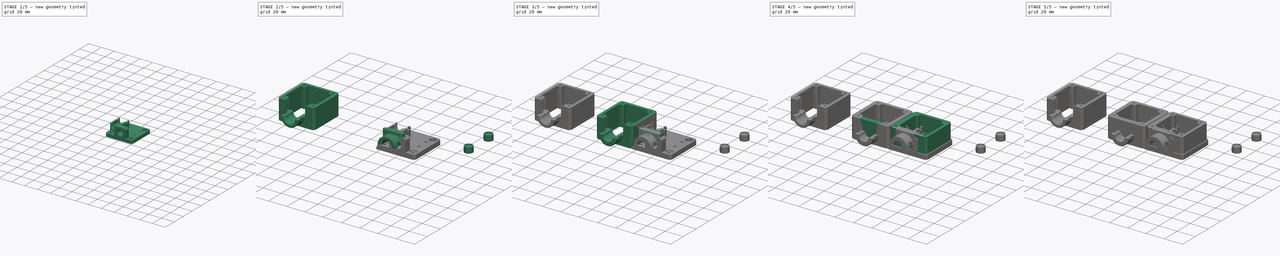
[diagram: build sequence overview — one tinted view per stage of 5, left to right]
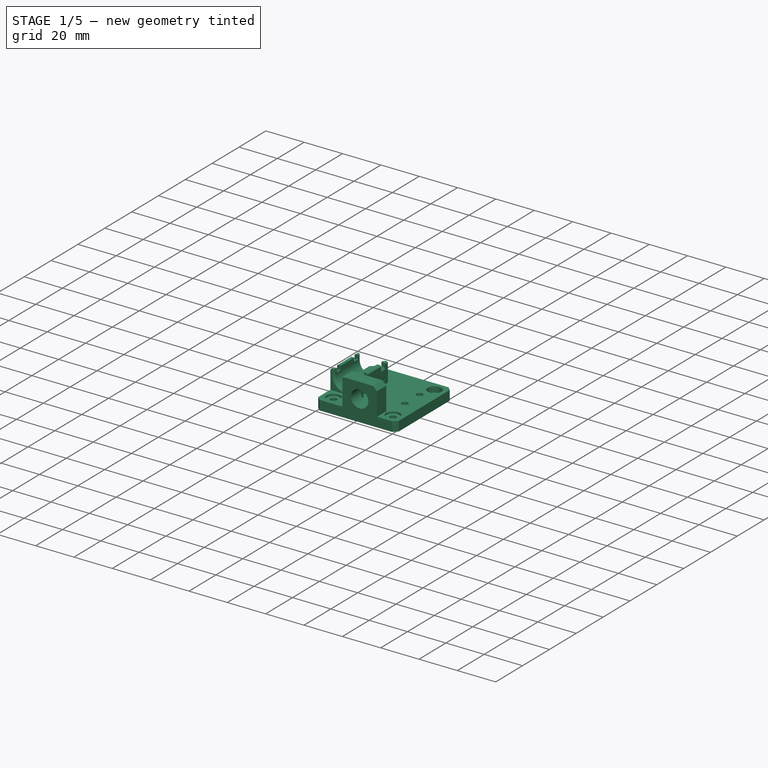
[diagram: stage 1 of 5 — iso view after this stage's code; geometry added in this stage tinted green]
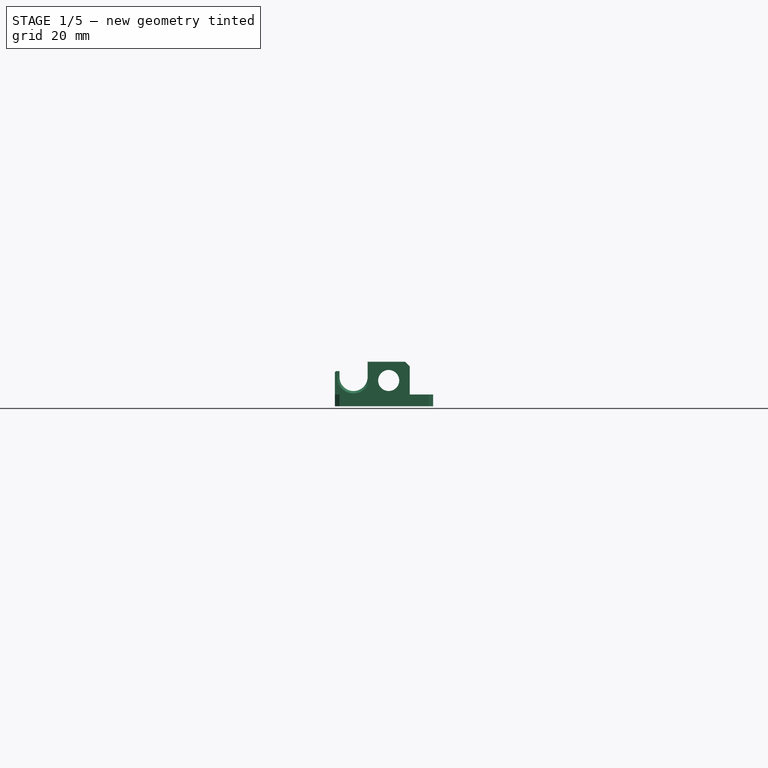
[diagram: stage 1 of 5 — front view after this stage's code; geometry added in this stage tinted green]
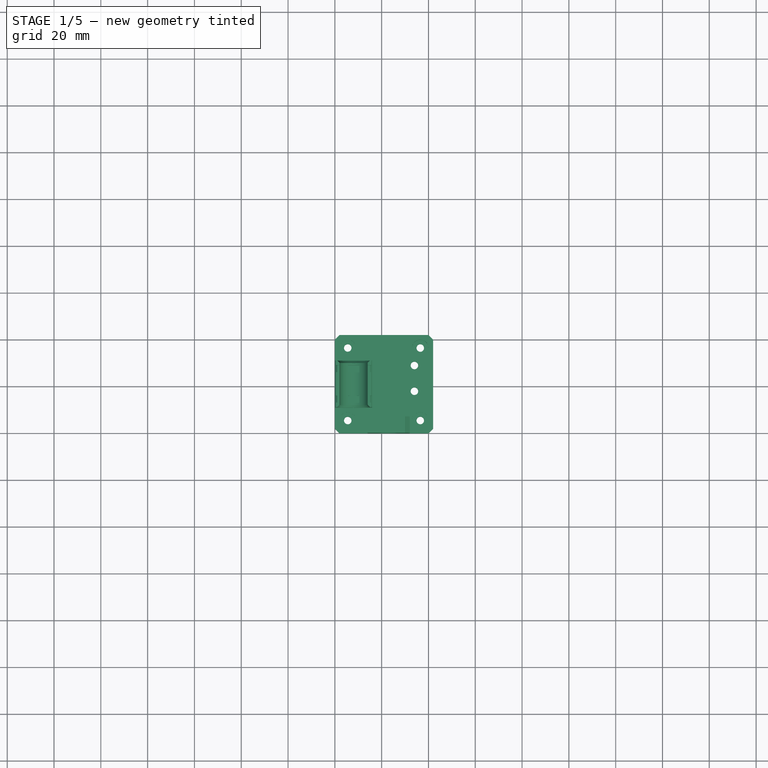
[diagram: stage 1 of 5 — top view after this stage's code; geometry added in this stage tinted green]
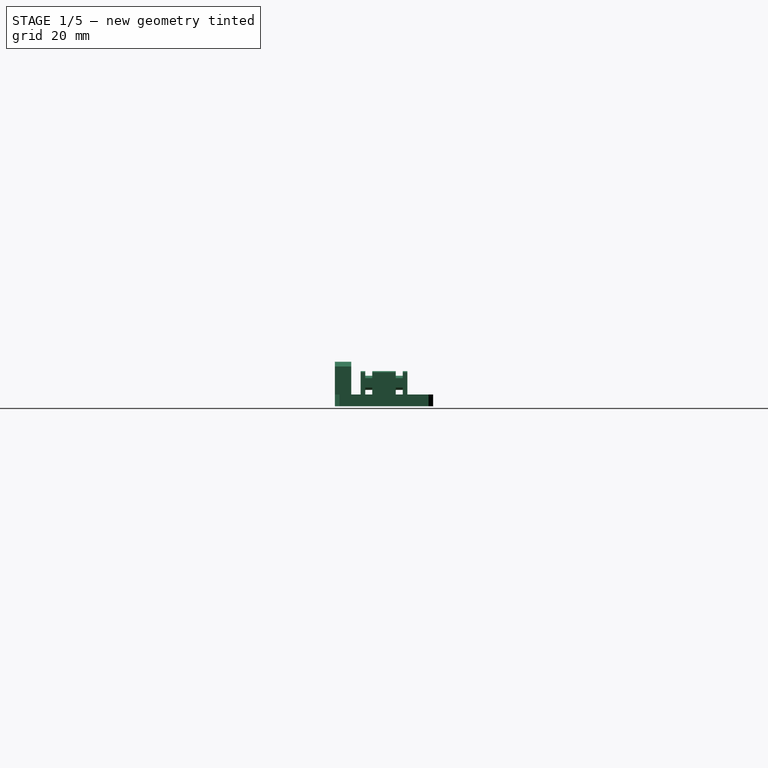
[diagram: stage 1 of 5 — right view after this stage's code; geometry added in this stage tinted green]
FCSTD DOCUMENT  (FreeCAD 0.18R14555 (Git shallow))
Label: extruder-wirebox-top-fix
License: All rights reserved
LicenseURL: http://en.wikipedia.org/wiki/All_rights_reserved
objects: Part::Box×35, Part::Cylinder×32, Part::Cut×32, Part::Feature×25, Part::MultiFuse×23, Part::Chamfer×9, Part::Fillet×4, Part::MultiCommon×3, Sketcher::SketchObject×1, PartDesign::Pad×1, PartDesign::Body×1
note: 167 computed .brp shape members not serialized (recipe doc carries the construction recipe); baked Part::Feature solids carry a one-line shape summary decoded from their .brp

FEATURE [Part::Feature] Cut004003004003003004001  label="Cut004003004003003005"
  Placement = pos=(74,0,0) rot=(0,0,1;0rad)
  shape: bbox 42 x 42 x 5 mm, 22 faces (baked)
FEATURE [Part::Cylinder] Cylinder013
  Angle = 360
  AttacherType = Attacher::AttachEngine3D
  Height = 5
  Placement = pos=(69.5,4.5,15) rot=(0,0,1;0rad)
  Radius = 3.5
FEATURE [Part::Cut] Cut004003004003003004002
  Base = -> Cut004003004003003004001
  Tool = -> Cylinder013
FEATURE [Part::Cylinder] Cylinder014
  Angle = 360
  AttacherType = Attacher::AttachEngine3D
  Height = 5
  Placement = pos=(69.5,35.5,15) rot=(0,0,1;0rad)
  Radius = 3.5
FEATURE [Part::Cut] Cut004003004003003004003
  Base = -> Cut004003004003003004002
  Placement = pos=(-32.5,1,-15) rot=(0,0,1;0rad)
  Tool = -> Cylinder014
FEATURE [Part::Feature] Cut004003004003003004004004003001  label="Cut004003004003003004004004004"
  shape: bbox 40 x 50 x 22 mm, 56 faces (baked)
FEATURE [Part::Feature] Cut004003004003003004003001  label="Cut004003004003003004004004005"
  Placement = pos=(75.5,41,-15) rot=(0,0,1;3.14159rad)
  shape: bbox 42 x 42 x 5 mm, 20 faces (baked)
FEATURE [Part::MultiFuse] Fusion004002002004005005004
  Placement = pos=(-0.5,0,0) rot=(0,0,1;0rad)
  Shapes = -> [Cut004003004003003004003,Cut004003004003003004003001]
FEATURE [Part::Box] Box032  label="Cube032"
  AttacherType = Attacher::AttachEngine3D
  Height = 15
  Length = 16
  Placement = pos=(0,10.5,0) rot=(0,0,1;0rad)
  Width = 20
FEATURE [Part::Cylinder] Cylinder030
  Angle = 360
  AttacherType = Attacher::AttachEngine3D
  Height = 32
  Placement = pos=(8,3e-15,12.5) rot=(-1,0,0;1.5708rad)
  Radius = 6
FEATURE [Part::Box] Box033  label="Cube033"
  AttacherType = Attacher::AttachEngine3D
  Height = 15
  Length = 12
  Placement = pos=(2,10.5,12.5) rot=(0,0,1;0rad)
  Width = 20
FEATURE [Part::Cut] Cut004003004003003004004004003002
  Base = -> Box032
  Tool = -> Box033
FEATURE [Part::Cut] Cut004003004003003004004004003003
  Base = -> Cut004003004003003004004004003002
  Tool = -> Cylinder030
FEATURE [Part::Box] Box034  label="Cube034"
  AttacherType = Attacher::AttachEngine3D
  Height = 2
  Length = 16
  Placement = pos=(0,12.5,5) rot=(0,0,1;0rad)
  Width = 3
FEATURE [Part::Box] Box035  label="Cube035"
  AttacherType = Attacher::AttachEngine3D
  Height = 2
  Length = 16
  Placement = pos=(0,25.5,5) rot=(0,0,1;0rad)
  Width = 3
FEATURE [Part::Box] Box036  label="Cube036"
  AttacherType = Attacher::AttachEngine3D
  Height = 2
  Length = 16
  Placement = pos=(0,25.5,13) rot=(0,0,1;0rad)
  Width = 3
FEATURE [Part::Box] Box037  label="Cube037"
  AttacherType = Attacher::AttachEngine3D
  Height = 2
  Length = 16
  Placement = pos=(0,12.5,13) rot=(0,0,1;0rad)
  Width = 3
FEATURE [Part::MultiFuse] Fusion004002002004005005005
  Shapes = -> [Box037,Box036,Box034,Box035]
FEATURE [Part::Cut] Cut004003004003003004004004003004
  Base = -> Cut004003004003003004004004003003
  Tool = -> Fusion004002002004005005005
FEATURE [Part::Chamfer] Chamfer006
  Base = -> Cut004003004003003004004004003004
  Edges = 14 edges r=1: [Edge3,Edge7,Edge16,Edge20,Edge41,Edge42,Edge43,Edge49,Edge50,Edge51,Edge94,Edge98,Edge100,Edge101]
  Placement = pos=(0,0.5,0) rot=(0,0,1;0rad)
FEATURE [Part::Chamfer] Chamfer007
  Base = -> Chamfer006
  Edges = 6 edges r=0.5: [Edge4,Edge9,Edge12,Edge110,Edge120,Edge122]
FEATURE [Part::MultiFuse] Fusion004002002004005005006
  Shapes = -> [Fusion004002002004005005004,Chamfer007]
FEATURE [Part::Feature] Fusion004002002004005005007001  label="Fusion004002002004005005008"
  Placement = pos=(31,26,0) rot=(0,0,1;0rad)
  shape: bbox 6 x 6 x 10 mm, 9 faces (baked)
FEATURE [Part::Feature] Fusion004002002004005005007002  label="Fusion004002002004005005009"
  Placement = pos=(31,15,0) rot=(0,0,1;0rad)
  shape: bbox 6 x 6 x 10 mm, 9 faces (baked)
FEATURE [Part::MultiFuse] Fusion004002002004005005007003
  Shapes = -> [Fusion004002002004005005007002,Fusion004002002004005005007001]
FEATURE [Part::Cut] Cut004003004003003004004004003005
  Base = -> Fusion004002002004005005006
  Tool = -> Fusion004002002004005005007003
FEATURE [Part::Cylinder] Cylinder032
  Angle = 360
  AttacherType = Attacher::AttachEngine3D
  Height = 7
  Placement = pos=(23,7,11) rot=(1,0,0;1.5708rad)
  Radius = 4.5
FEATURE [Part::Box] Box039  label="Cube039"
  AttacherType = Attacher::AttachEngine3D
  Height = 14
  Length = 18
  Placement = pos=(14,0,5) rot=(0,0,1;0rad)
  Width = 7
FEATURE [Part::Cylinder] Cylinder033
  Angle = 360
  AttacherType = Attacher::AttachEngine3D
  Height = 2
  Placement = pos=(36.5,36.5,2) rot=(0,0,1;0rad)
  Radius = 3.5
FEATURE [Part::Cut] Cut004003004003003004004004003007
  Base = -> Cut004003004003003004004004003005
  Tool = -> Cylinder033
FEATURE [Part::Cut] Cut004003004003003004004004003008
  Base = -> Box039
  Tool = -> Cylinder032
FEATURE [Part::Chamfer] Chamfer008
  Base = -> Cut004003004003003004004004003008
  Edges = 1 edges r=2: [Edge10]
FEATURE [Part::MultiFuse] Fusion004002002004005005007004
  Shapes = -> [Cut004003004003003004004004003007,Chamfer008]
FEATURE [Part::Feature] Fusion004002002004005005007004001  label="Fusion004002002004005005007005"
  shape: bbox 42 x 42 x 19 mm, 92 faces (baked)
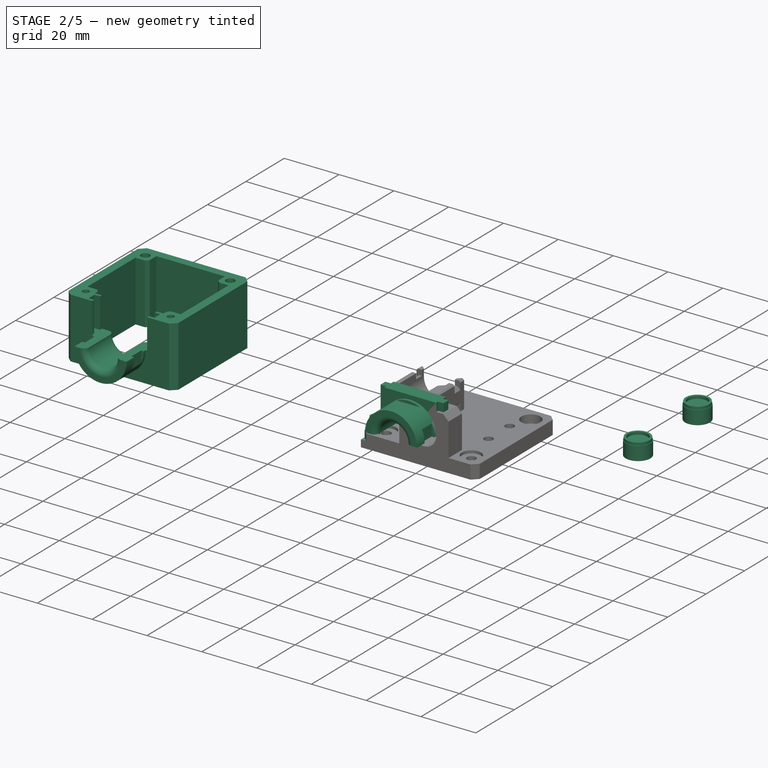
[diagram: stage 2 of 5 — iso view after this stage's code; geometry added in this stage tinted green]
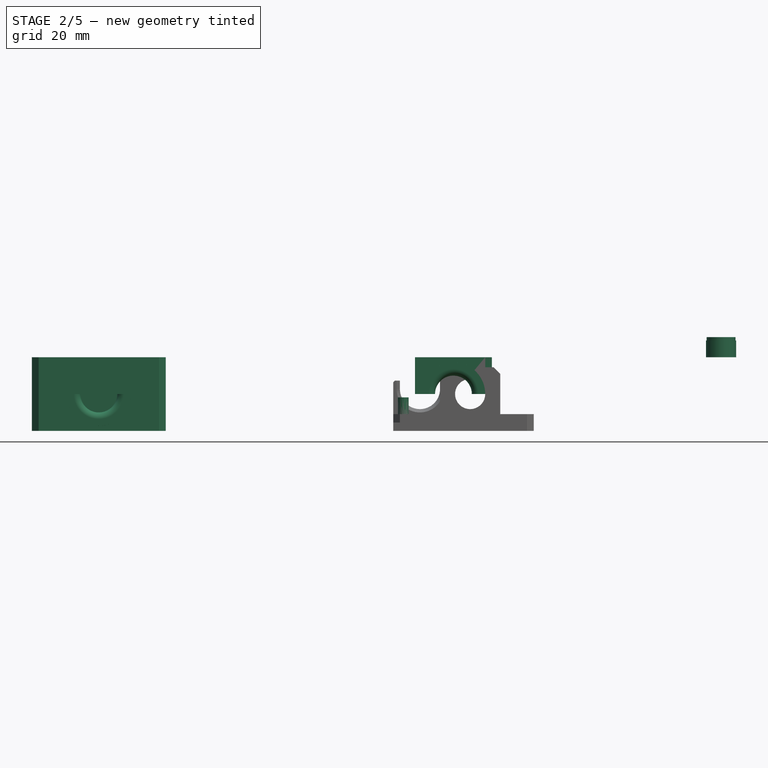
[diagram: stage 2 of 5 — front view after this stage's code; geometry added in this stage tinted green]
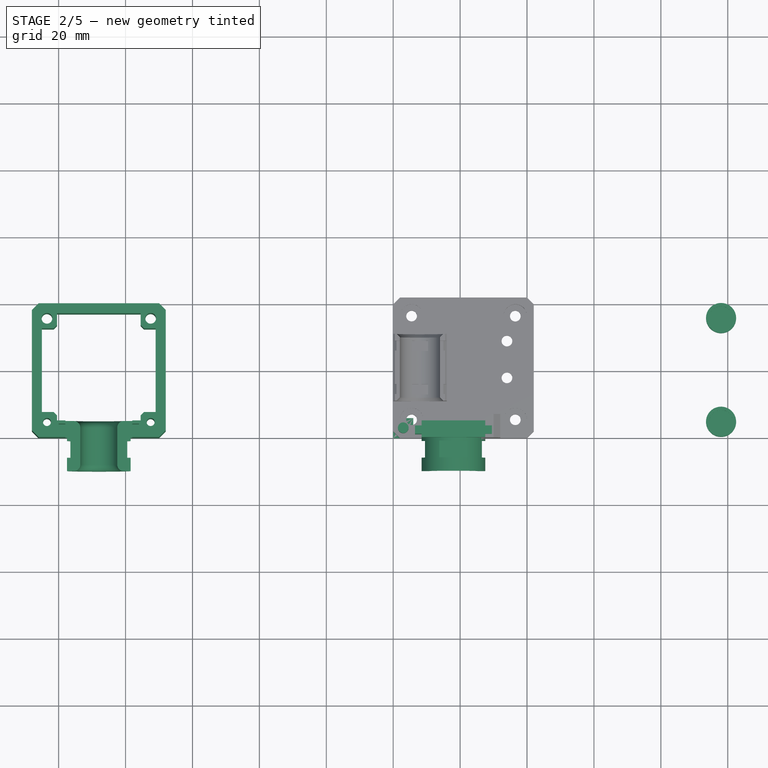
[diagram: stage 2 of 5 — top view after this stage's code; geometry added in this stage tinted green]
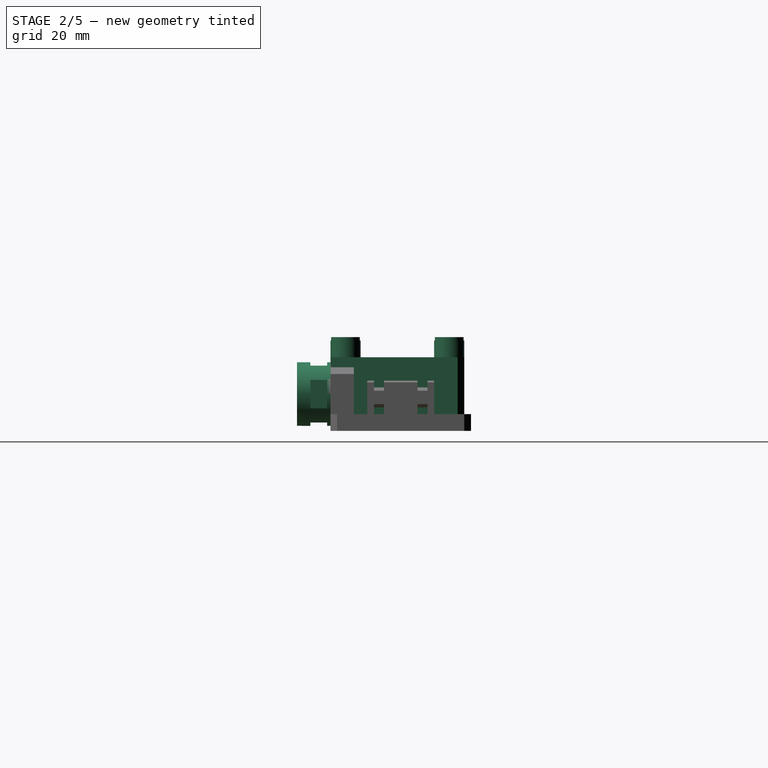
[diagram: stage 2 of 5 — right view after this stage's code; geometry added in this stage tinted green]
FEATURE [Part::Feature] Fusion004002002004005005001  label="Fusion004002002004005006"
  shape: bbox 40 x 50 x 22 mm, 51 faces (baked)
FEATURE [Part::Feature] Fusion004002002004005004001  label="Fusion004002002004005007"
  shape: bbox 24 x 16.5 x 11 mm, 28 faces (baked)
FEATURE [Part::Fillet] Fillet
  Base = -> Fusion004002002004005004001
  Edges = 1 edges r=2: [Edge76]
FEATURE [Part::Box] Box029  label="Cube029"
  AttacherType = Attacher::AttachEngine3D
  Height = 1
  Length = 10
  Placement = pos=(13,-6,19.5) rot=(0,0,1;0rad)
  Width = 5
FEATURE [Part::Cylinder] Cylinder019
  Angle = 360
  AttacherType = Attacher::AttachEngine3D
  Height = 5
  Placement = pos=(98,4.5,22) rot=(0,0,1;0rad)
  Radius = 4.5
FEATURE [Part::Cylinder] Cylinder020
  Angle = 360
  AttacherType = Attacher::AttachEngine3D
  Height = 5
  Placement = pos=(98,35.5,22) rot=(0,0,1;0rad)
  Radius = 4.5
FEATURE [Part::Cylinder] Cylinder021
  Angle = 360
  AttacherType = Attacher::AttachEngine3D
  Height = 4
  Placement = pos=(98,35.5,24) rot=(0,0,1;0rad)
  Radius = 3.5
FEATURE [Part::Cylinder] Cylinder022
  Angle = 360
  AttacherType = Attacher::AttachEngine3D
  Height = 4
  Placement = pos=(98,4.5,24) rot=(0,0,1;0rad)
  Radius = 3.5
FEATURE [Part::MultiFuse] Fusion004002002004005005002
  Shapes = -> [Cylinder020,Cylinder019]
FEATURE [Part::Cylinder] Cylinder023
  Angle = 360
  AttacherType = Attacher::AttachEngine3D
  Height = 6
  Placement = pos=(98,35.5,22) rot=(0,0,1;0rad)
  Radius = 4.3
FEATURE [Part::Cylinder] Cylinder024
  Angle = 360
  AttacherType = Attacher::AttachEngine3D
  Height = 6
  Placement = pos=(98,4.5,22) rot=(0,0,1;0rad)
  Radius = 4.3
FEATURE [Part::Cylinder] Cylinder025
  Angle = 360
  AttacherType = Attacher::AttachEngine3D
  Height = 5
  Placement = pos=(98,4.5,22) rot=(0,0,1;0rad)
  Radius = 1.6
FEATURE [Part::Cylinder] Cylinder026
  Angle = 360
  AttacherType = Attacher::AttachEngine3D
  Height = 5
  Placement = pos=(98,35.5,22) rot=(0,0,1;0rad)
  Radius = 1.6
FEATURE [Part::Cut] Cut004003004003003004004006
  Base = -> Cylinder024
  Tool = -> Cylinder022
FEATURE [Part::Cut] Cut004003004003003004004007
  Base = -> Cylinder023
  Tool = -> Cylinder021
FEATURE [Part::Cut] Cut004003004003003004004008
  Base = -> Cut004003004003003004004007
  Tool = -> Cylinder026
FEATURE [Part::Cut] Cut004003004003003004004009
  Base = -> Cut004003004003003004004006
  Tool = -> Cylinder025
FEATURE [Part::Box] Box031  label="Cube031"
  AttacherType = Attacher::AttachEngine3D
  Height = 14
  Length = 25
  Placement = pos=(6,5,9) rot=(0,0,1;0rad)
  Width = 10
FEATURE [Part::Cut] Cut004003004003003004004010
  Base = -> Fillet
  Tool = -> Box031
FEATURE [Part::Fillet] Fillet003
  Base = -> Cut004003004003003004004010
  Edges = 1 edges r=2: [Edge41]
FEATURE [Part::Cut] Cut004003004003003004004011
  Base = -> Fillet003
  Tool = -> Box029
FEATURE [Part::Feature] Cut004003004003003004004004001  label="Cut004003004003003004004012"
  Placement = pos=(-68,0,0) rot=(0,0,1;0rad)
  shape: bbox 40 x 50 x 22 mm, 56 faces (baked)
FEATURE [Part::Cylinder] Cylinder027
  Angle = 360
  AttacherType = Attacher::AttachEngine3D
  Height = 22
  Placement = pos=(-72.5,4.5,0) rot=(0,0,1;0rad)
  Radius = 2
FEATURE [Part::Cylinder] Cylinder028
  Angle = 360
  AttacherType = Attacher::AttachEngine3D
  Height = 22
  Placement = pos=(-72.5,4.5,0) rot=(0,0,1;0rad)
  Radius = 1.2
FEATURE [Part::Cylinder] Cylinder029
  Angle = 360
  AttacherType = Attacher::AttachEngine3D
  Height = 22
  Placement = pos=(-103.5,35.5,0) rot=(0,0,1;0rad)
  Radius = 1.6
FEATURE [Part::Cut] Cut004003004003003004004004002
  Base = -> Cut004003004003003004004004001
  Tool = -> Cylinder029
FEATURE [Part::MultiFuse] Fusion004002002004005005003
  Shapes = -> [Cut004003004003003004004004002,Cylinder027]
FEATURE [Part::Cut] Cut004003004003003004004004003
  Base = -> Fusion004002002004005005003
  Tool = -> Cylinder028
FEATURE [Part::Box] Box038  label="Cube038"
  AttacherType = Attacher::AttachEngine3D
  Height = 2.5
  Length = 6
  Width = 6
FEATURE [Part::Cylinder] Cylinder031
  Angle = 360
  AttacherType = Attacher::AttachEngine3D
  Height = 10
  Placement = pos=(3,3,0) rot=(0,0,1;0rad)
  Radius = 1.6
FEATURE [Part::MultiFuse] Fusion004002002004005005007
  Shapes = -> [Cylinder031,Box038]
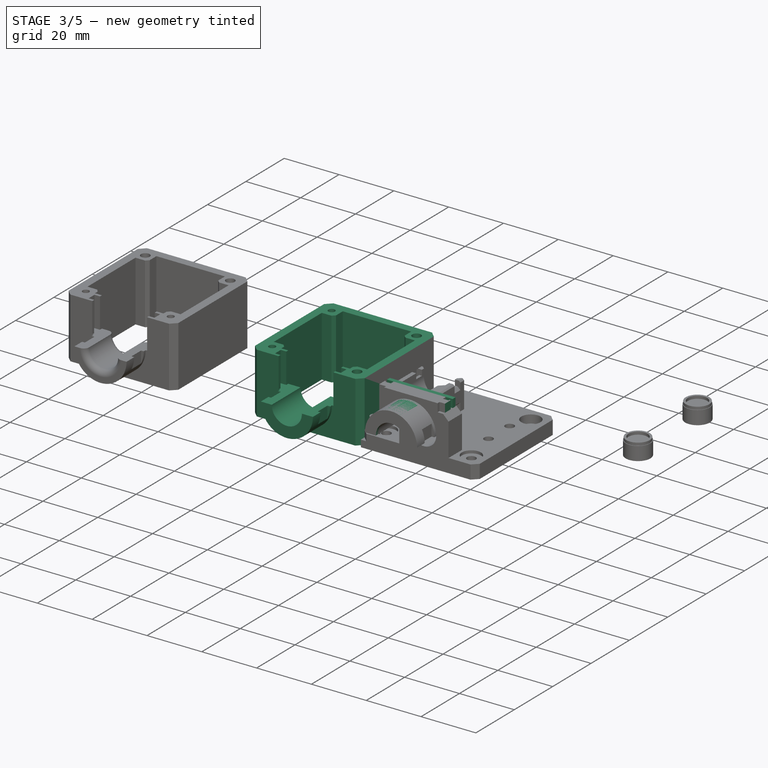
[diagram: stage 3 of 5 — iso view after this stage's code; geometry added in this stage tinted green]
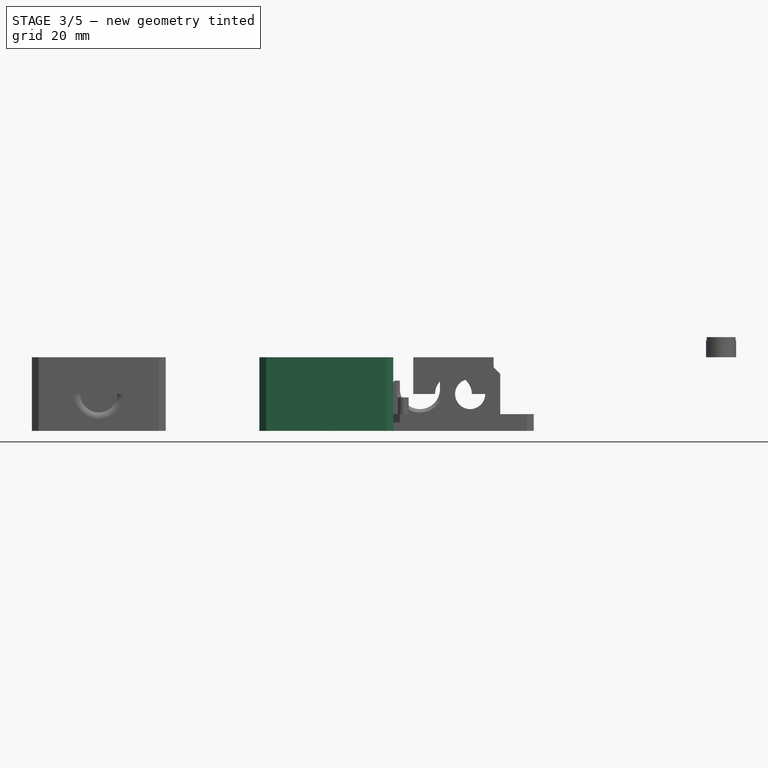
[diagram: stage 3 of 5 — front view after this stage's code; geometry added in this stage tinted green]
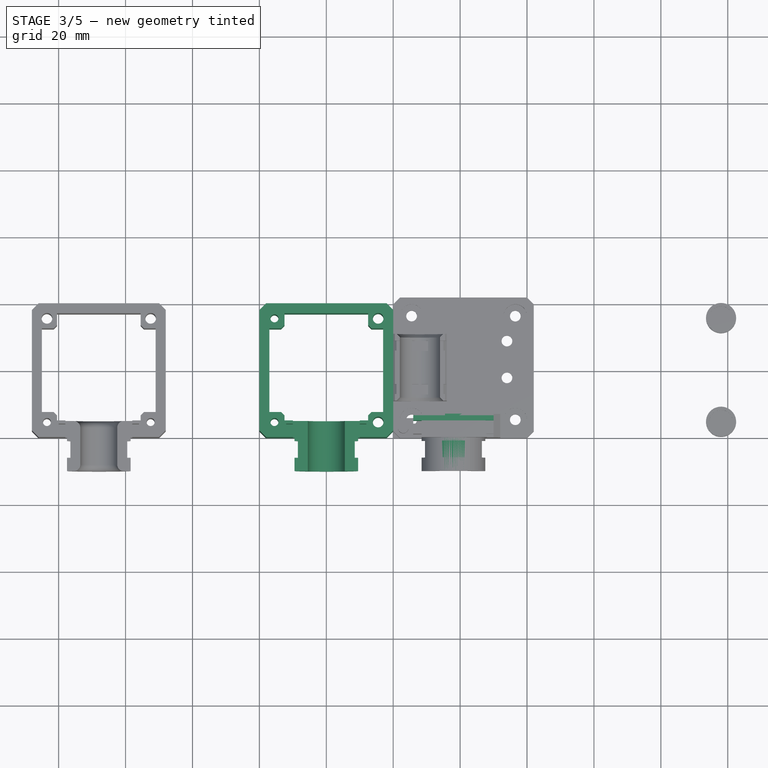
[diagram: stage 3 of 5 — top view after this stage's code; geometry added in this stage tinted green]
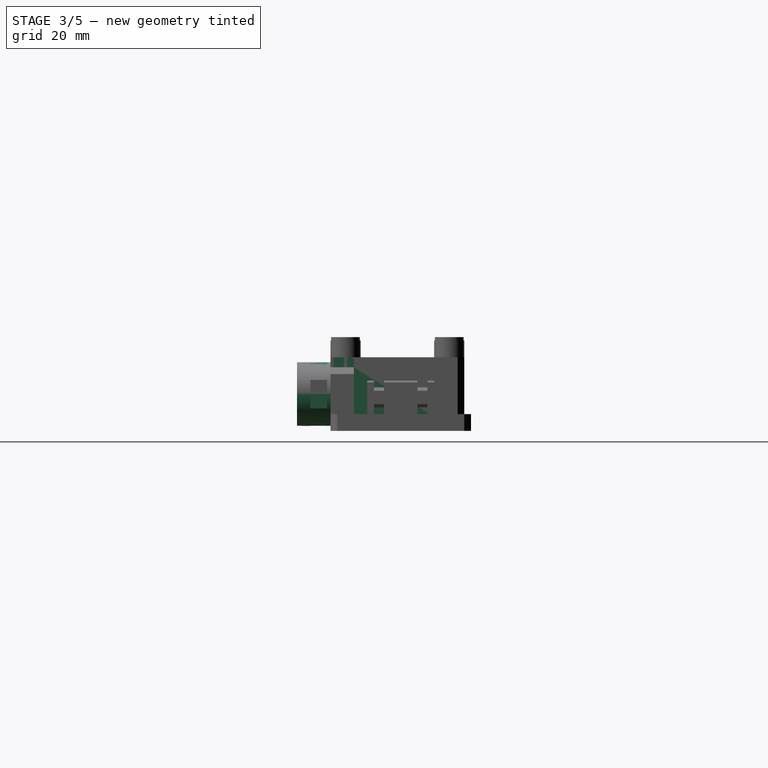
[diagram: stage 3 of 5 — right view after this stage's code; geometry added in this stage tinted green]
FEATURE [Part::Box] Box018  label="Cube018"
  AttacherType = Attacher::AttachEngine3D
  Height = 11
  Length = 0.5
  Placement = pos=(27.5,0,11) rot=(0,0,1;0rad)
  Width = 1
FEATURE [Part::Box] Box019  label="Cube019"
  AttacherType = Attacher::AttachEngine3D
  Height = 11
  Length = 0.5
  Placement = pos=(6,1,11) rot=(0,0,1;0rad)
  Width = 3
FEATURE [Part::Box] Box020  label="Cube020"
  AttacherType = Attacher::AttachEngine3D
  Height = 11
  Length = 0.5
  Placement = pos=(29.5,1,11) rot=(0,0,1;0rad)
  Width = 3
FEATURE [Part::Feature] Cut004003004003001  label="Cut004003004004"
  shape: bbox 24 x 16.5 x 11 mm, 28 faces (baked)
FEATURE [Part::Feature] Cut004003004002001  label="Cut004003004005"
  shape: bbox 40 x 50 x 22 mm, 51 faces (baked)
FEATURE [Part::Cylinder] Cylinder008
  Angle = 360
  AttacherType = Attacher::AttachEngine3D
  Height = 22
  Placement = pos=(-4.5,4.5,0) rot=(0,0,1;0rad)
  Radius = 1.6
FEATURE [Part::Cylinder] Cylinder009
  Angle = 360
  AttacherType = Attacher::AttachEngine3D
  Height = 22
  Placement = pos=(-4.5,35.5,0) rot=(0,0,1;0rad)
  Radius = 1.6
FEATURE [Part::Cylinder] Cylinder010
  Angle = 360
  AttacherType = Attacher::AttachEngine3D
  Height = 22
  Placement = pos=(-35.5,4.5,0) rot=(0,0,1;0rad)
  Radius = 2
FEATURE [Part::Cylinder] Cylinder011
  Angle = 360
  AttacherType = Attacher::AttachEngine3D
  Height = 22
  Placement = pos=(-35.5,35.5,0) rot=(0,0,1;0rad)
  Radius = 2
FEATURE [Part::MultiFuse] Fusion004002002004004  label="widern"
  Shapes = -> [Cylinder008,Cylinder009]
FEATURE [Part::Feature] Fusion004002002004005001  label="small-screw001"
  shape: bbox 2.4 x 33.4 x 22 mm, 6 faces, 2 solids (baked)
FEATURE [Part::MultiFuse] Fusion004002002004005002
  Shapes = -> [Cut004003004002001,Cylinder010,Cylinder011]
FEATURE [Part::Cut] Cut004003004003002
  Base = -> Fusion004002002004005002
  Tool = -> Fusion004002002004005001
FEATURE [Part::Cut] Cut004003004003003
  Base = -> Cut004003004003002
  Tool = -> Fusion004002002004004
FEATURE [Part::Feature] Cut004003004003003001  label="Cut004003004003004"
  shape: bbox 40 x 50 x 22 mm, 51 faces (baked)
FEATURE [Part::Cylinder] Cylinder012
  Angle = 360
  AttacherType = Attacher::AttachEngine3D
  Height = 10
  Placement = pos=(18,2e-15,11) rot=(-1,0,0;1.5708rad)
  Radius = 7.5
FEATURE [Part::Cut] Cut004003004003003002
  Base = -> Cut004003004003001
  Tool = -> Cylinder012
FEATURE [Part::Box] Box026  label="Cube026"
  AttacherType = Attacher::AttachEngine3D
  Height = 5
  Length = 5
  Placement = pos=(15.5,4,16.5) rot=(0,0,1;0rad)
  Width = 3
FEATURE [Part::Cylinder] Cylinder017
  Angle = 360
  AttacherType = Attacher::AttachEngine3D
  Height = 15
  Placement = pos=(-20,5,11) rot=(1,0,0;1.5708rad)
  Radius = 7.5
FEATURE [Part::Cylinder] Cylinder018
  Angle = 360
  AttacherType = Attacher::AttachEngine3D
  Height = 15
  Placement = pos=(-20,5,11) rot=(1,0,0;1.5708rad)
  Radius = 5.5
FEATURE [Part::Cut] Cut004003004003003004004
  Base = -> Cylinder017
  Tool = -> Cylinder018
FEATURE [Part::Feature] Cut004003004003003004004001  label="Cut004003004003003004005"
  shape: bbox 15 x 15 x 15 mm, 4 faces (baked)
FEATURE [Part::Box] Box027  label="Cube027"
  AttacherType = Attacher::AttachEngine3D
  Height = 10
  Length = 19
  Placement = pos=(-29.5,-10,11) rot=(0,0,1;0rad)
  Width = 18
FEATURE [Part::Box] Box028  label="Cube028"
  AttacherType = Attacher::AttachEngine3D
  Height = 10
  Length = 19
  Placement = pos=(-29.5,-10,11) rot=(0,0,1;0rad)
  Width = 18
FEATURE [Part::Cut] Cut004003004003003004004002
  Base = -> Cut004003004003003004004
  Tool = -> Box028
FEATURE [Part::MultiCommon] Common003
  Placement = pos=(38,0,0) rot=(0,0,1;0rad)
  Shapes = -> [Box027,Cut004003004003003004004001]
FEATURE [Part::Feature] Common003001  label="Common004"
  Placement = pos=(38,1.5,0) rot=(0,0,1;0rad)
  shape: bbox 15 x 15 x 7.5 mm, 6 faces (baked)
FEATURE [Part::MultiFuse] Fusion004002002004005004
  Shapes = -> [Common003001,Common003,Cut004003004003003002]
FEATURE [Part::MultiFuse] Fusion004002002004005005
  Shapes = -> [Cut004003004003003004004002,Cut004003004003003001]
FEATURE [Part::Fillet] Fillet001
  Base = -> Fusion004002002004005005001
  Edges = 1 edges r=2: [Edge148]
FEATURE [Part::Fillet] Fillet002
  Base = -> Fillet001
  Edges = 1 edges r=2: [Edge30]
FEATURE [Part::Box] Box030  label="Cube030"
  AttacherType = Attacher::AttachEngine3D
  Height = 1
  Length = 10
  Placement = pos=(-25,-6,1.5) rot=(0,0,1;0rad)
  Width = 5
FEATURE [Part::Cut] Cut004003004003003004004004
  Base = -> Fillet002
  Tool = -> Box030
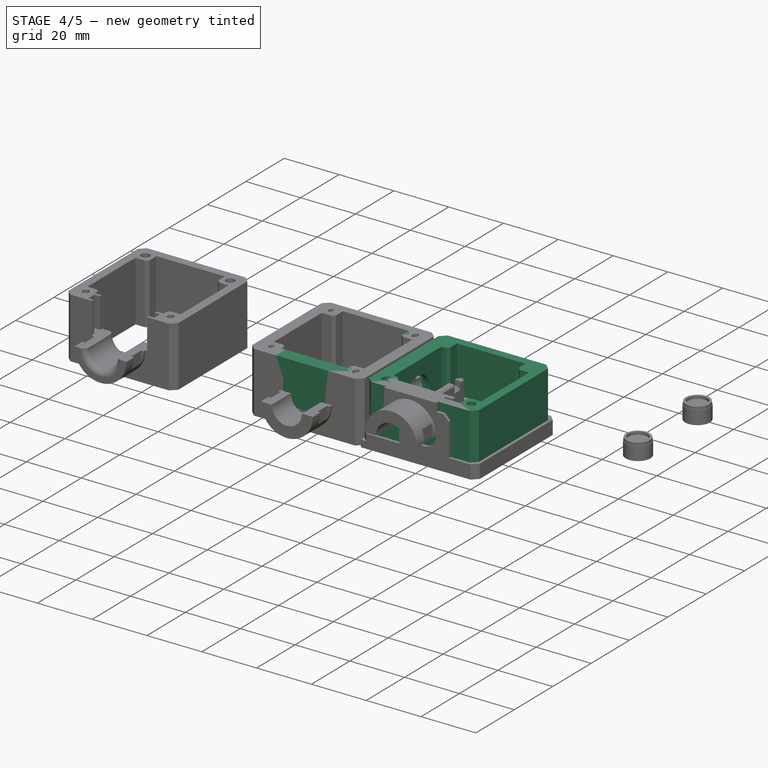
[diagram: stage 4 of 5 — iso view after this stage's code; geometry added in this stage tinted green]
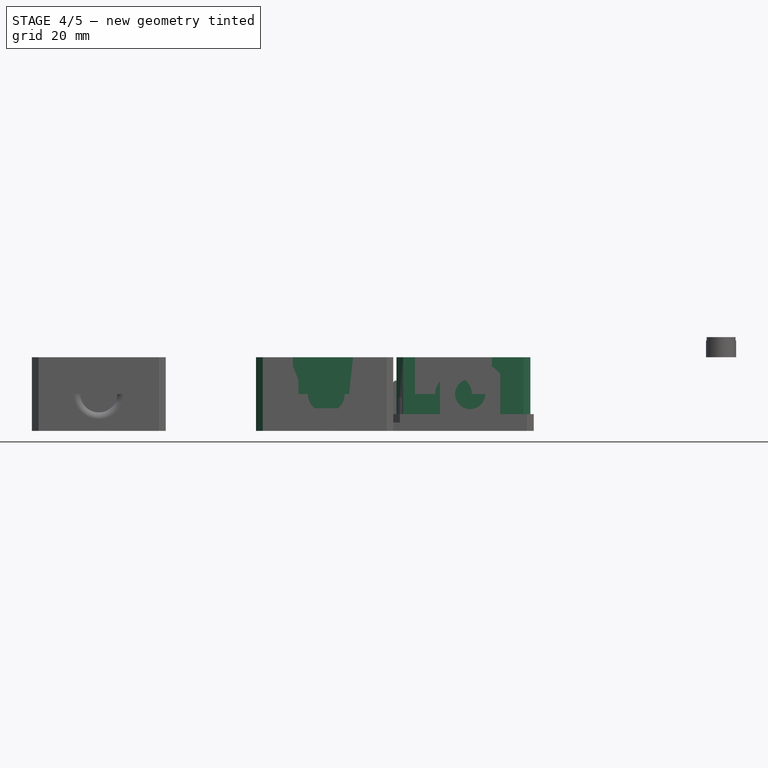
[diagram: stage 4 of 5 — front view after this stage's code; geometry added in this stage tinted green]
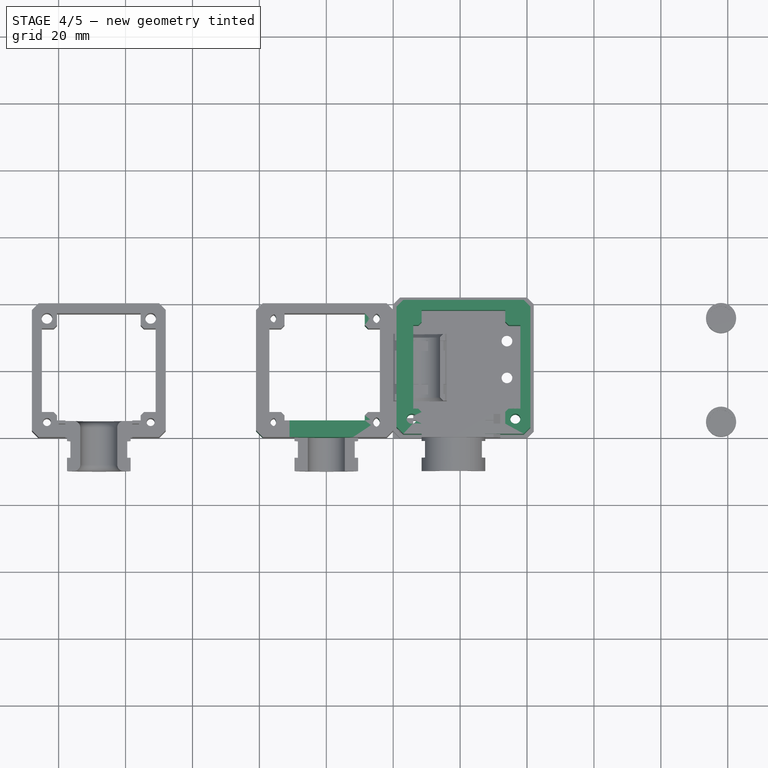
[diagram: stage 4 of 5 — top view after this stage's code; geometry added in this stage tinted green]
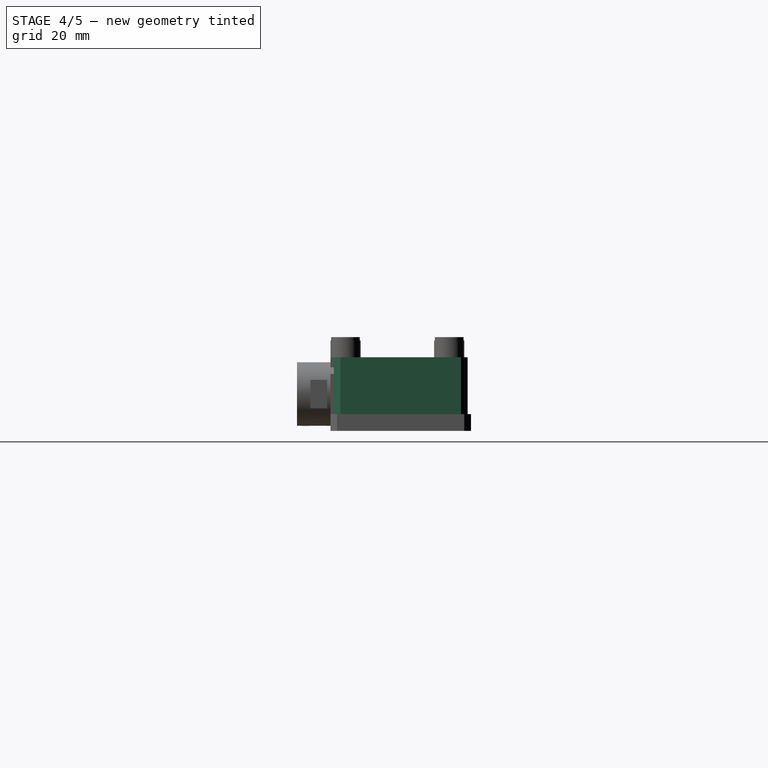
[diagram: stage 4 of 5 — right view after this stage's code; geometry added in this stage tinted green]
FEATURE [Part::Cylinder] Cylinder003
  Angle = 360
  AttacherType = Attacher::AttachEngine3D
  Height = 22
  Placement = pos=(5.5,36.5,0) rot=(0,0,1;0rad)
  Radius = 1.5
FEATURE [Part::Cylinder] Cylinder004
  Angle = 360
  AttacherType = Attacher::AttachEngine3D
  Height = 22
  Placement = pos=(36.5,36.5,0) rot=(0,0,1;0rad)
  Radius = 1.5
FEATURE [Part::Feature] Cut004001  label="Cut005"
  shape: bbox 40 x 40 x 22 mm, 39 faces (baked)
FEATURE [Part::Box] Box008  label="Cube008"
  AttacherType = Attacher::AttachEngine3D
  Height = 22
  Length = 10
  Placement = pos=(9,34,0) rot=(0,0,1;0rad)
  Width = 10
FEATURE [Part::Feature] Cut004002  label="Cut006"
  shape: bbox 40 x 40 x 22 mm, 39 faces (baked)
FEATURE [Part::MultiCommon] Common
  Placement = pos=(9,0,0) rot=(0,0,1;0rad)
  Shapes = -> [Box008,Cut004002]
FEATURE [Part::Feature] Common001
  Placement = pos=(13,0,0) rot=(0,0,1;0rad)
  shape: bbox 10 x 3 x 22 mm, 7 faces (baked)
FEATURE [Part::Feature] Fusion004001  label="Fusion005"
  Placement = pos=(-2e-16,-1,0) rot=(0,0,1;1.5708rad)
  shape: bbox 40 x 40 x 22 mm, 38 faces (baked)
FEATURE [Part::MultiFuse] Fusion004
  Shapes = -> [Common001,Common,Cut004001]
FEATURE [Part::Feature] Fusion004002001  label="Fusion004003"
  shape: bbox 40 x 40 x 22 mm, 38 faces (baked)
FEATURE [Part::Feature] Fusion004002001_solid  label="Fusion004003 (Solid)"
  shape: bbox 40 x 40 x 22 mm, 38 faces (baked)
FEATURE [Part::Feature] Body001001  label="Body002"
  Placement = pos=(-6,21,11) rot=(1,0,0;1.5708rad)
  shape: bbox 10 x 16.45 x 19 mm, 8 faces (baked)
FEATURE [Part::Cut] Cut004003002
  Base = -> Fusion004002001_solid
  Tool = -> Body001001
FEATURE [Part::Box] Box009  label="Cube009"
  AttacherType = Attacher::AttachEngine3D
  Height = 22
  Length = 19
  Placement = pos=(-31,0,0) rot=(0,0,1;0rad)
  Width = 5
FEATURE [Part::MultiFuse] Fusion004002002
  Shapes = -> [Fusion004001,Box009]
FEATURE [Part::Feature] Fusion004002002001  label="Fusion004002003"
  Placement = pos=(1,0,0) rot=(0,0,1;0rad)
  shape: bbox 40 x 40 x 22 mm, 30 faces (baked)
FEATURE [Part::Cylinder] Cylinder006
  Angle = 360
  AttacherType = Attacher::AttachEngine3D
  Height = 15
  Placement = pos=(-20,5,11) rot=(1,0,0;1.5708rad)
  Radius = 9.5
FEATURE [Part::Cylinder] Cylinder007
  Angle = 360
  AttacherType = Attacher::AttachEngine3D
  Height = 15
  Placement = pos=(-20,5,11) rot=(1,0,0;1.5708rad)
  Radius = 7.5
FEATURE [Part::MultiFuse] Fusion004002002002
  Shapes = -> [Fusion004002002001,Cylinder006]
FEATURE [Part::Cut] Cut004003003
  Base = -> Fusion004002002002
  Tool = -> Cylinder007
FEATURE [Part::Box] Box010  label="Cube010"
  AttacherType = Attacher::AttachEngine3D
  Height = 22
  Length = 1
  Placement = pos=(-11.5,-6,0) rot=(0,0,1;0rad)
  Width = 5
FEATURE [Part::Box] Box011  label="Cube011"
  AttacherType = Attacher::AttachEngine3D
  Height = 22
  Length = 1
  Placement = pos=(-29.5,-6,0) rot=(0,0,1;0rad)
  Width = 5
FEATURE [Part::MultiFuse] Fusion004002002003
  Shapes = -> [Box011,Box010]
FEATURE [Part::Cut] Cut004003004
  Base = -> Cut004003003
  Tool = -> Fusion004002002003
FEATURE [Part::Box] Box012  label="Cube012"
  AttacherType = Attacher::AttachEngine3D
  Height = 11
  Length = 20
  Placement = pos=(-30,-10,11) rot=(0,0,1;0rad)
  Width = 15
FEATURE [Part::Box] Box013  label="Cube013"
  AttacherType = Attacher::AttachEngine3D
  Height = 11
  Length = 24
  Placement = pos=(-32,1,11) rot=(0,0,1;0rad)
  Width = 3
FEATURE [Part::MultiFuse] Fusion004002002004
  Shapes = -> [Box013,Box012]
FEATURE [Part::Feature] Cut004003004001  label="Cut004003005"
  shape: bbox 40 x 50 x 22 mm, 40 faces (baked)
FEATURE [Part::Feature] Fusion004002002004001  label="Fusion004002002005"
  shape: bbox 24 x 15 x 11 mm, 22 faces (baked)
FEATURE [Part::Cut] Cut004003004002
  Base = -> Cut004003004
  Tool = -> Fusion004002002004
FEATURE [Part::MultiCommon] Common002
  Placement = pos=(38,0,0) rot=(0,0,1;0rad)
  Shapes = -> [Fusion004002002004001,Cut004003004001]
FEATURE [Part::Box] Box014  label="Cube014"
  AttacherType = Attacher::AttachEngine3D
  Height = 11
  Length = 24
  Placement = pos=(6,5,11) rot=(0,0,1;0rad)
  Width = 1.5
FEATURE [Part::Box] Box015  label="Cube015"
  AttacherType = Attacher::AttachEngine3D
  Height = 11
  Length = 2.5
  Placement = pos=(6,3.5,11) rot=(0,0,1;0rad)
  Width = 1.5
FEATURE [Part::MultiFuse] Fusion004002002004002
  Shapes = -> [Box014,Common002]
FEATURE [Part::Box] Box016  label="Cube016"
  AttacherType = Attacher::AttachEngine3D
  Height = 11
  Length = 2.5
  Placement = pos=(27.5,3.5,11) rot=(0,0,1;0rad)
  Width = 1.5
FEATURE [Part::Box] Box017  label="Cube017"
  AttacherType = Attacher::AttachEngine3D
  Height = 11
  Length = 0.5
  Placement = pos=(8,0,11) rot=(0,0,1;0rad)
  Width = 1
FEATURE [Part::MultiFuse] Fusion004002002004003
  Shapes = -> [Box020,Box019,Box018,Box017,Box016,Box015]
FEATURE [Part::Cut] Cut004003004003
  Base = -> Fusion004002002004002
  Tool = -> Fusion004002002004003
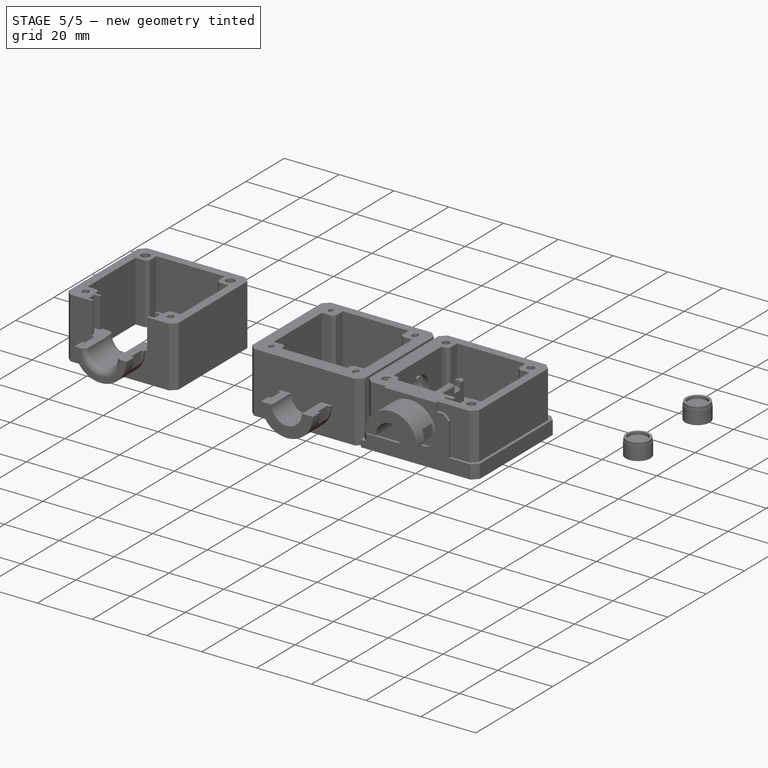
[diagram: stage 5 of 5 — iso view after this stage's code; geometry added in this stage tinted green]
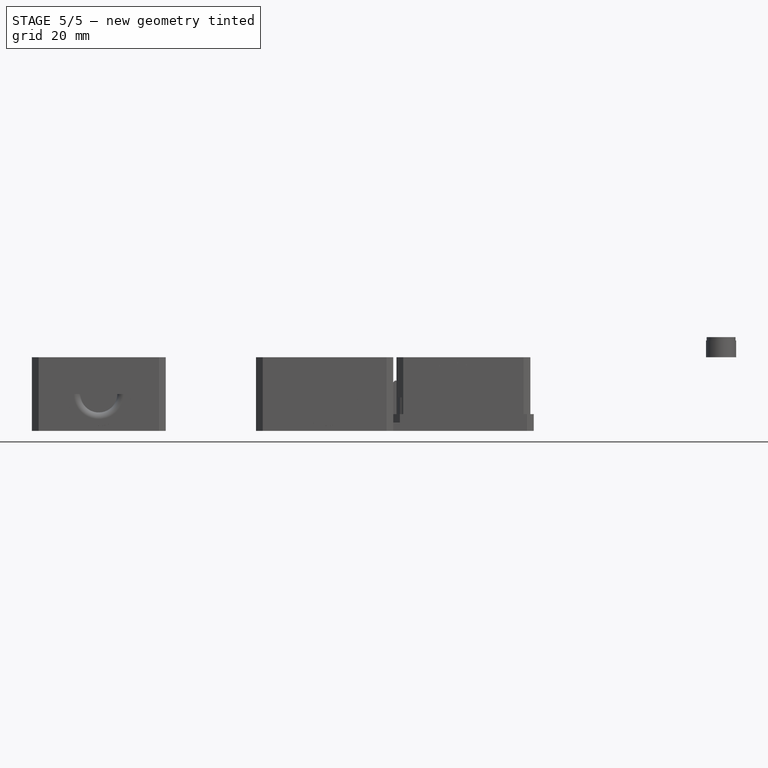
[diagram: stage 5 of 5 — front view after this stage's code; geometry added in this stage tinted green]
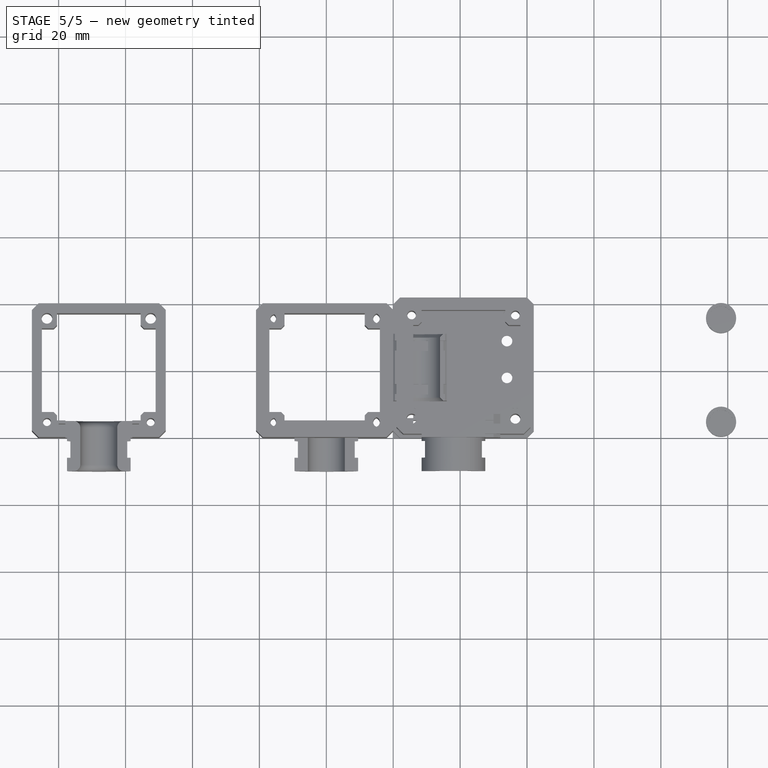
[diagram: stage 5 of 5 — top view after this stage's code; geometry added in this stage tinted green]
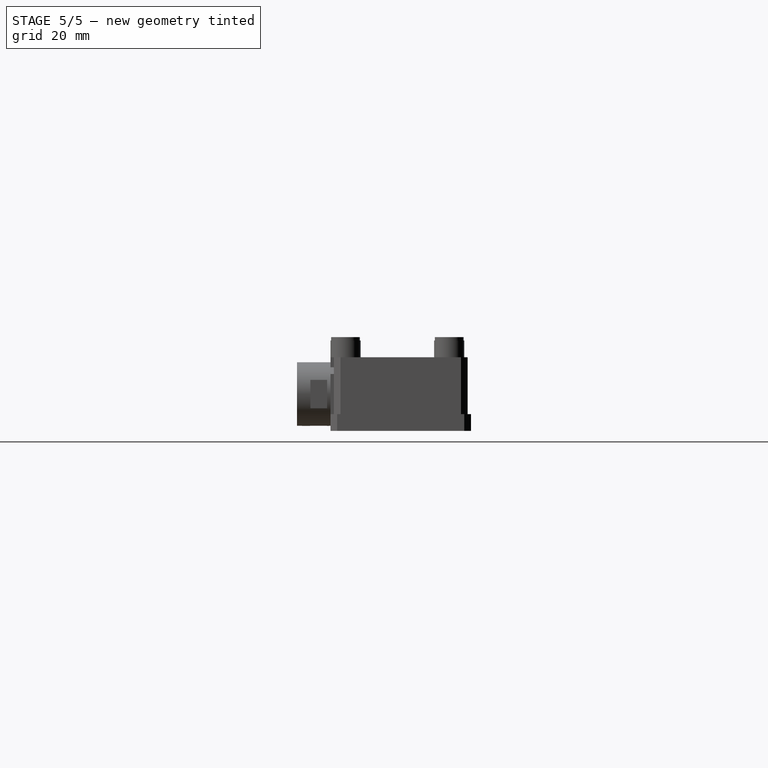
[diagram: stage 5 of 5 — right view after this stage's code; geometry added in this stage tinted green]
FEATURE [Sketcher::SketchObject] Sketch
  MapMode = 5
  Support = -> [XY_Plane]
  sketch-geometry (7):
    g0: LineSegment StartX=8.5 StartY=0 StartZ=0 EndX=4.25 EndY=7.36122 EndZ=0
    g1: LineSegment StartX=4.25 StartY=7.36122 StartZ=0 EndX=-4.25 EndY=7.36122 EndZ=0
    g2: LineSegment StartX=-4.25 StartY=7.36122 StartZ=0 EndX=-8.5 EndY=9e-16 EndZ=0
    g3: LineSegment StartX=-8.5 StartY=9e-16 StartZ=0 EndX=-4.25 EndY=-7.36122 EndZ=0
    g4: LineSegment StartX=-4.25 StartY=-7.36122 StartZ=0 EndX=4.25 EndY=-7.36122 EndZ=0
    g5: LineSegment StartX=4.25 StartY=-7.36122 StartZ=0 EndX=8.5 EndY=0 EndZ=0
    g6: Circle [constr] CenterX=0 CenterY=0 CenterZ=0 NormalX=0 NormalY=0 NormalZ=1 AngleXU=0 Radius=8.5
  constraints (13):
    c: Coincident(g0,g1)
    c: Coincident(g1,g2)
    c: Coincident(g2,g3)
    c: Coincident(g3,g4)
    c: Coincident(g4,g5)
    c: Coincident(g5,g0)
    c: Equal(g0, g1-g5) x5
    c: PointOnObject(g0,g6)
    c: PointOnObject(g1,g6)
    c: PointOnObject(g2,g6)
    c: PointOnObject(g3,g6)
    c: PointOnObject(g4,g6)
    c: PointOnObject(g5,g6)
FEATURE [PartDesign::Pad] Pad
  Length = 5
  Length2 = 100
  Profile = -> Sketch
  Type = 0
FEATURE [PartDesign::Body] Body
  Group = -> [Sketch,Pad]
  Origin = -> Origin
  Tip = -> Pad
FEATURE [Part::Cylinder] Cylinder
  Angle = 360
  AttacherType = Attacher::AttachEngine3D
  Height = 10
  Radius = 6.2
FEATURE [Part::MultiFuse] Fusion  label="screw"
  Placement = pos=(-1,21,11) rot=(0,1,0;1.5708rad)
  Shapes = -> [Cylinder,Pad,Body]
FEATURE [Part::Box] Box  label="Cube"
  AttacherType = Attacher::AttachEngine3D
  Height = 22
  Length = 42
  Width = 42
FEATURE [Part::Box] Box001  label="Cube001"
  AttacherType = Attacher::AttachEngine3D
  Height = 22
  Length = 32
  Placement = pos=(6,4,0) rot=(0,0,1;0rad)
  Width = 34
FEATURE [Part::Box] Box002  label="Cube002"
  AttacherType = Attacher::AttachEngine3D
  Height = 22
  Length = 42
  Width = 42
FEATURE [Part::Box] Box003  label="Cube003"
  AttacherType = Attacher::AttachEngine3D
  Height = 22
  Length = 40
  Placement = pos=(1,1,0) rot=(0,0,1;0rad)
  Width = 40
FEATURE [Part::Cut] Cut
  Base = -> Box002
  Tool = -> Box003
FEATURE [Part::Cut] Cut001
  Base = -> Box
  Tool = -> Cut
FEATURE [Part::Cut] Cut002
  Base = -> Cut001
  Tool = -> Box001
FEATURE [Part::Cut] Cut003
  Base = -> Cut002
  Tool = -> Fusion
FEATURE [Part::Cylinder] Cylinder001
  Angle = 360
  AttacherType = Attacher::AttachEngine3D
  Height = 22
  Placement = pos=(5.5,5.5,0) rot=(0,0,1;0rad)
  Radius = 1.5
FEATURE [Part::Cylinder] Cylinder002
  Angle = 360
  AttacherType = Attacher::AttachEngine3D
  Height = 22
  Placement = pos=(36.5,5.5,0) rot=(0,0,1;0rad)
  Radius = 1.5
FEATURE [Part::Box] Box004  label="Cube004"
  AttacherType = Attacher::AttachEngine3D
  Height = 22
  Length = 6
  Placement = pos=(2.5,2.5,0) rot=(0,0,1;0rad)
  Width = 6
FEATURE [Part::Box] Box005  label="Cube005"
  AttacherType = Attacher::AttachEngine3D
  Height = 22
  Length = 6
  Placement = pos=(33.5,2.5,0) rot=(0,0,1;0rad)
  Width = 6
FEATURE [Part::Box] Box006  label="Cube006"
  AttacherType = Attacher::AttachEngine3D
  Height = 22
  Length = 6
  Placement = pos=(2.5,33.5,0) rot=(0,0,1;0rad)
  Width = 6
FEATURE [Part::Box] Box007  label="Cube007"
  AttacherType = Attacher::AttachEngine3D
  Height = 22
  Length = 6
  Placement = pos=(33.5,33.5,0) rot=(0,0,1;0rad)
  Width = 6
FEATURE [Part::Chamfer] Chamfer
  Base = -> Box006
  Edges = 1 edges r=1: [Edge5]
FEATURE [Part::Chamfer] Chamfer001
  Base = -> Box007
  Edges = 1 edges r=1: [Edge1]
FEATURE [Part::Chamfer] Chamfer002
  Base = -> Box004
  Edges = 1 edges r=1: [Edge7]
FEATURE [Part::Chamfer] Chamfer003
  Base = -> Box005
  Edges = 1 edges r=1: [Edge3]
FEATURE [Part::Chamfer] Chamfer004
  Base = -> Cut003
  Edges = 3 edges r=2: [Edge11,Edge12,Edge14]
FEATURE [Part::Cylinder] Cylinder005
  Angle = 360
  AttacherType = Attacher::AttachEngine3D
  Height = 10
  Placement = pos=(25,34,11) rot=(-1,0,0;1.5708rad)
  Radius = 6
FEATURE [Part::Chamfer] Chamfer005
  Base = -> Chamfer004
  Edges = 1 edges r=2: [Edge14]
FEATURE [Part::MultiFuse] Fusion001
  Shapes = -> [Cylinder004,Cylinder002,Cylinder001,Cylinder003]
FEATURE [Part::MultiFuse] Fusion002
  Shapes = -> [Chamfer001,Chamfer002,Chamfer005,Chamfer,Chamfer003]
FEATURE [Part::MultiFuse] Fusion003
  Shapes = -> [Fusion001,Cylinder005]
FEATURE [Part::Cut] Cut004
  Base = -> Fusion002
  Tool = -> Fusion003
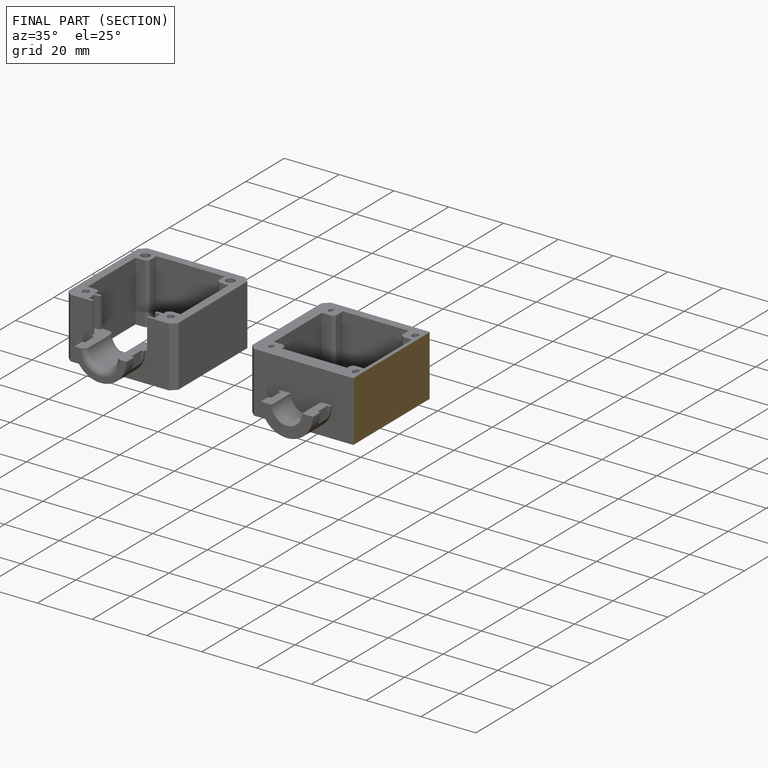
[diagram: finished part — half-section view (interior)]
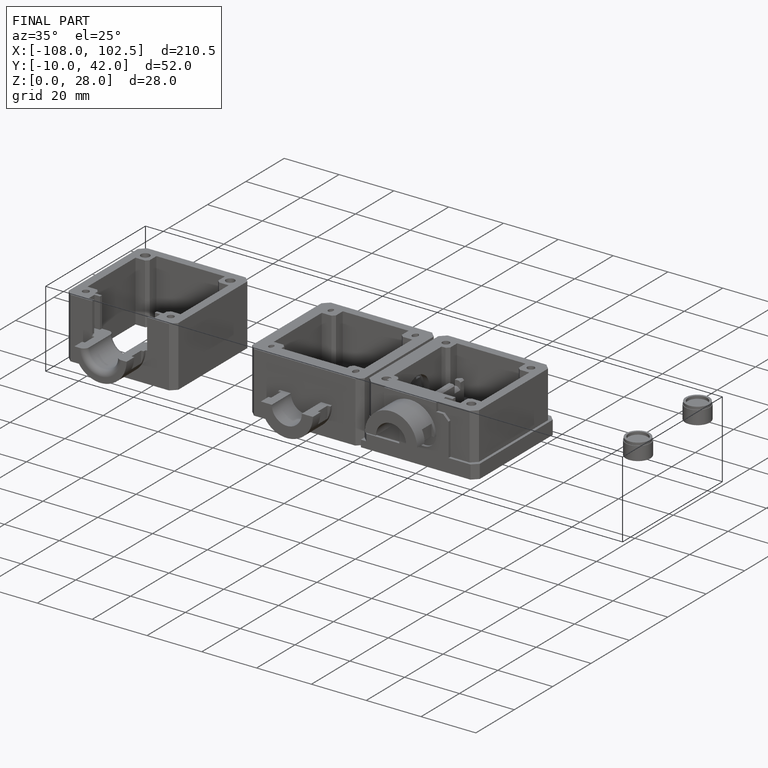
[diagram: finished part — iso view with bounding-box wireframe]
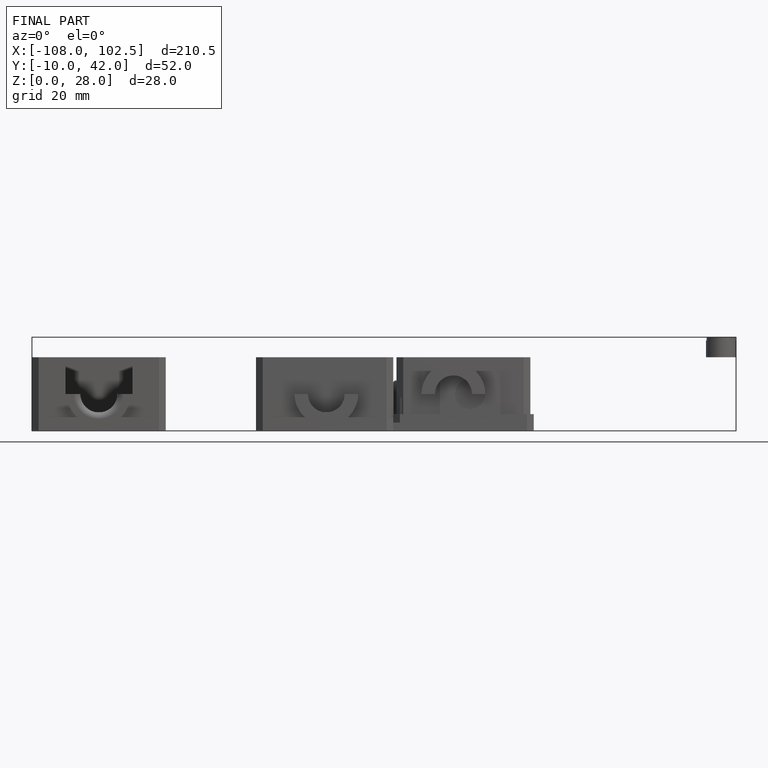
[diagram: finished part — front view with bounding-box wireframe]
